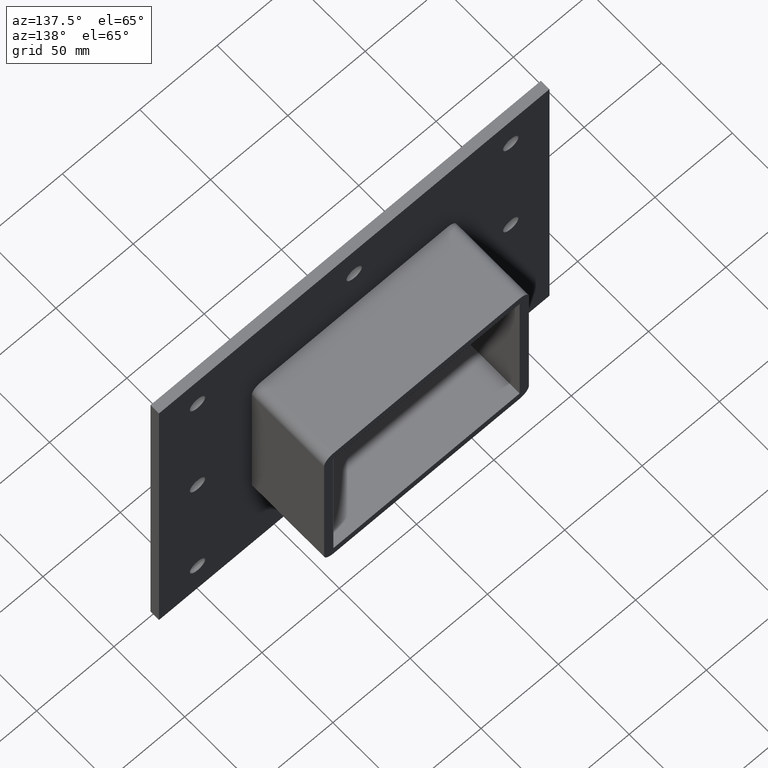
[diagram: clean part render]
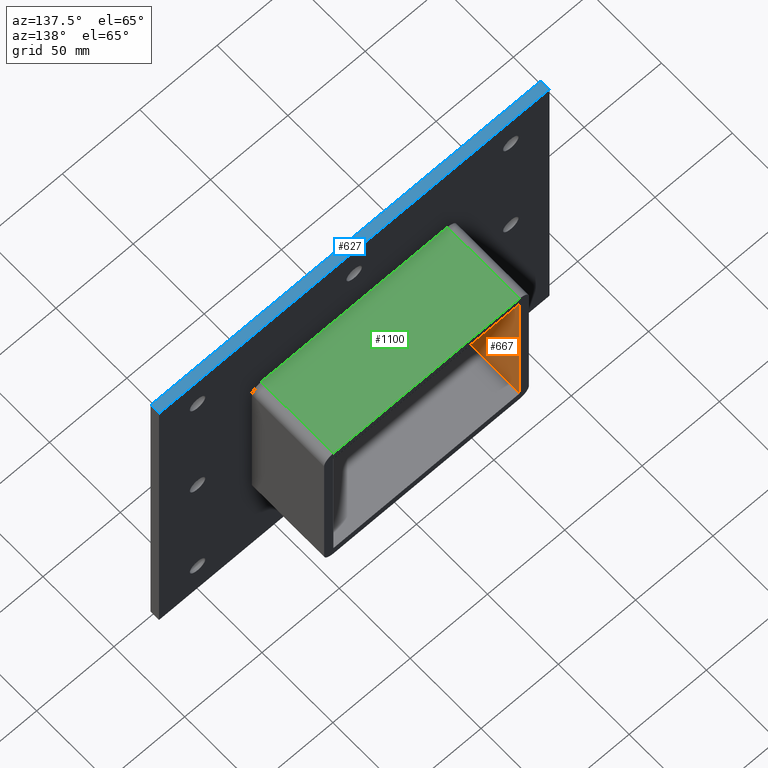
[diagram: same view with three faces highlighted in distinct colors, each labeled with its STEP entity id]
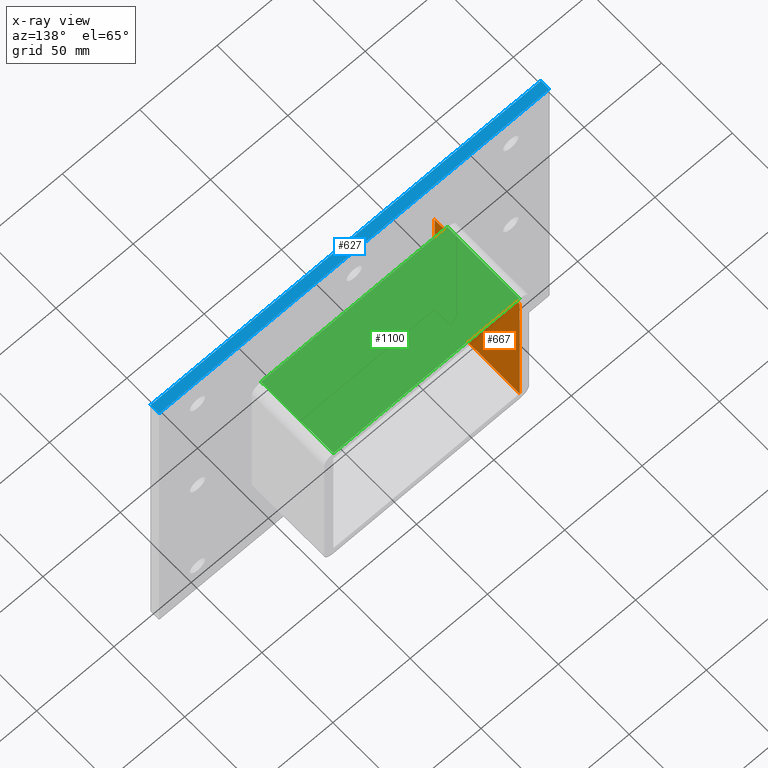
[diagram: x-ray of the same camera — body ghosted, the three highlighted faces saturated]
A machine part, auxiliary view with three faces highlighted in distinct colors.
The next image is the same camera in x-ray (body ghosted, the three faces saturated) — at least one of them is partly hidden behind the body in this view.
Their STEP definitions:

[orange] entity #667 — the highlighted planar face has unit normal (-1, 0, 0).
#628=CARTESIAN_POINT('',(-60.25,0.0,-50.5));
#629=DIRECTION('',(-1.0,0.0,0.0));
#630=DIRECTION('',(0.0,0.0,1.0));
#631=AXIS2_PLACEMENT_3D('',#628,#629,#630);
#632=PLANE('',#631);
#633=CARTESIAN_POINT('',(-60.25,-3.0,-50.5));
#634=VERTEX_POINT('',#633);
#635=CARTESIAN_POINT('',(-60.25,57.0,-50.5));
#636=VERTEX_POINT('',#635);
#637=CARTESIAN_POINT('',(-60.25,-3.0,-50.5));
#638=DIRECTION('',(0.0,1.0,0.0));
#639=VECTOR('',#638,60.0);
#640=LINE('',#637,#639);
#641=EDGE_CURVE('',#634,#636,#640,.T.);
#642=ORIENTED_EDGE('',*,*,#641,.T.);
#643=CARTESIAN_POINT('',(-60.25,57.0,50.500000000000014));
#644=VERTEX_POINT('',#643);
#645=CARTESIAN_POINT('',(-60.25,57.0,50.500000000000014));
#646=DIRECTION('',(0.0,0.0,-1.0));
#647=VECTOR('',#646,101.00000000000001);
#648=LINE('',#645,#647);
#649=EDGE_CURVE('',#644,#636,#648,.T.);
#650=ORIENTED_EDGE('',*,*,#649,.F.);
#651=CARTESIAN_POINT('',(-60.25,-3.0,50.500000000000014));
#652=VERTEX_POINT('',#651);
#653=CARTESIAN_POINT('',(-60.25,-3.0,50.500000000000007));
#654=DIRECTION('',(0.0,1.0,0.0));
#655=VECTOR('',#654,60.0);
#656=LINE('',#653,#655);
#657=EDGE_CURVE('',#652,#644,#656,.T.);
#658=ORIENTED_EDGE('',*,*,#657,.F.);
#659=CARTESIAN_POINT('',(-60.25,-3.0,-50.5));
#660=DIRECTION('',(0.0,0.0,1.0));
#661=VECTOR('',#660,101.00000000000001);
#662=LINE('',#659,#661);
#663=EDGE_CURVE('',#634,#652,#662,.T.);
#664=ORIENTED_EDGE('',*,*,#663,.F.);
#665=EDGE_LOOP('',(#642,#650,#658,#664));
#666=FACE_OUTER_BOUND('',#665,.T.);
#667=ADVANCED_FACE('',(#666),#632,.F.);

[blue] entity #627 — the highlighted planar face has unit normal (0, 0, 1).
#297=CARTESIAN_POINT('',(-126.24999999999999,6.000000000000001,116.50000000000003));
#298=VERTEX_POINT('',#297);
#299=CARTESIAN_POINT('',(126.25000000000001,6.000000000000001,116.50000000000003));
#300=VERTEX_POINT('',#299);
#301=CARTESIAN_POINT('',(-126.24999999999999,6.000000000000001,116.50000000000003));
#302=DIRECTION('',(1.0,0.0,0.0));
#303=VECTOR('',#302,252.5);
#304=LINE('',#301,#303);
#305=EDGE_CURVE('',#298,#300,#304,.T.);
#431=CARTESIAN_POINT('',(-126.24999999999999,0.0,116.50000000000003));
#432=VERTEX_POINT('',#431);
#433=CARTESIAN_POINT('',(126.25,0.0,116.50000000000003));
#434=VERTEX_POINT('',#433);
#435=CARTESIAN_POINT('',(-126.24999999999999,0.0,116.50000000000003));
#436=DIRECTION('',(1.0,0.0,0.0));
#437=VECTOR('',#436,252.5);
#438=LINE('',#435,#437);
#439=EDGE_CURVE('',#432,#434,#438,.T.);
#566=CARTESIAN_POINT('',(-126.24999999999999,0.0,116.50000000000003));
#567=DIRECTION('',(0.0,1.0,0.0));
#568=VECTOR('',#567,6.000000000000001);
#569=LINE('',#566,#568);
#570=EDGE_CURVE('',#432,#298,#569,.T.);
#607=CARTESIAN_POINT('',(126.25,0.0,116.50000000000003));
#608=DIRECTION('',(0.0,1.0,0.0));
#609=VECTOR('',#608,6.000000000000001);
#610=LINE('',#607,#609);
#611=EDGE_CURVE('',#434,#300,#610,.T.);
#616=CARTESIAN_POINT('',(-126.24999999999999,0.0,116.50000000000003));
#617=DIRECTION('',(0.0,0.0,1.0));
#618=DIRECTION('',(1.0,0.0,0.0));
#619=AXIS2_PLACEMENT_3D('',#616,#617,#618);
#620=PLANE('',#619);
#621=ORIENTED_EDGE('',*,*,#439,.T.);
#622=ORIENTED_EDGE('',*,*,#611,.T.);
#623=ORIENTED_EDGE('',*,*,#305,.F.);
#624=ORIENTED_EDGE('',*,*,#570,.F.);
#625=EDGE_LOOP('',(#621,#622,#623,#624));
#626=FACE_OUTER_BOUND('',#625,.T.);
#627=ADVANCED_FACE('',(#626),#620,.T.);

[green] entity #1100 — the highlighted planar face has unit normal (0, 0, 1).
#391=CARTESIAN_POINT('',(60.249999999999986,6.000000000000001,56.5));
#392=VERTEX_POINT('',#391);
#400=CARTESIAN_POINT('',(-60.25,6.000000000000001,56.5));
#401=VERTEX_POINT('',#400);
#402=CARTESIAN_POINT('',(-60.25,6.000000000000001,56.5));
#403=DIRECTION('',(1.0,0.0,0.0));
#404=VECTOR('',#403,120.49999999999999);
#405=LINE('',#402,#404);
#406=EDGE_CURVE('',#401,#392,#405,.T.);
#714=CARTESIAN_POINT('',(60.249999999999979,57.0,56.5));
#715=VERTEX_POINT('',#714);
#723=CARTESIAN_POINT('',(60.249999999999986,57.0,56.5));
#724=DIRECTION('',(0.0,-1.0,0.0));
#725=VECTOR('',#724,51.0);
#726=LINE('',#723,#725);
#727=EDGE_CURVE('',#715,#392,#726,.T.);
#1065=CARTESIAN_POINT('',(-60.25,57.0,56.5));
#1066=VERTEX_POINT('',#1065);
#1067=CARTESIAN_POINT('',(-60.25,6.000000000000001,56.5));
#1068=DIRECTION('',(0.0,1.0,0.0));
#1069=VECTOR('',#1068,51.0);
#1070=LINE('',#1067,#1069);
#1071=EDGE_CURVE('',#401,#1066,#1070,.T.);
#1084=CARTESIAN_POINT('',(-66.250000000000014,0.0,56.5));
#1085=DIRECTION('',(0.0,0.0,1.0));
#1086=DIRECTION('',(1.0,0.0,0.0));
#1087=AXIS2_PLACEMENT_3D('',#1084,#1085,#1086);
#1088=PLANE('',#1087);
#1089=ORIENTED_EDGE('',*,*,#406,.T.);
#1090=ORIENTED_EDGE('',*,*,#727,.F.);
#1091=CARTESIAN_POINT('',(-60.250000000000007,57.0,56.5));
#1092=DIRECTION('',(1.0,0.0,0.0));
#1093=VECTOR('',#1092,120.49999999999997);
#1094=LINE('',#1091,#1093);
#1095=EDGE_CURVE('',#1066,#715,#1094,.T.);
#1096=ORIENTED_EDGE('',*,*,#1095,.F.);
#1097=ORIENTED_EDGE('',*,*,#1071,.F.);
#1098=EDGE_LOOP('',(#1089,#1090,#1096,#1097));
#1099=FACE_OUTER_BOUND('',#1098,.T.);
#1100=ADVANCED_FACE('',(#1099),#1088,.T.);